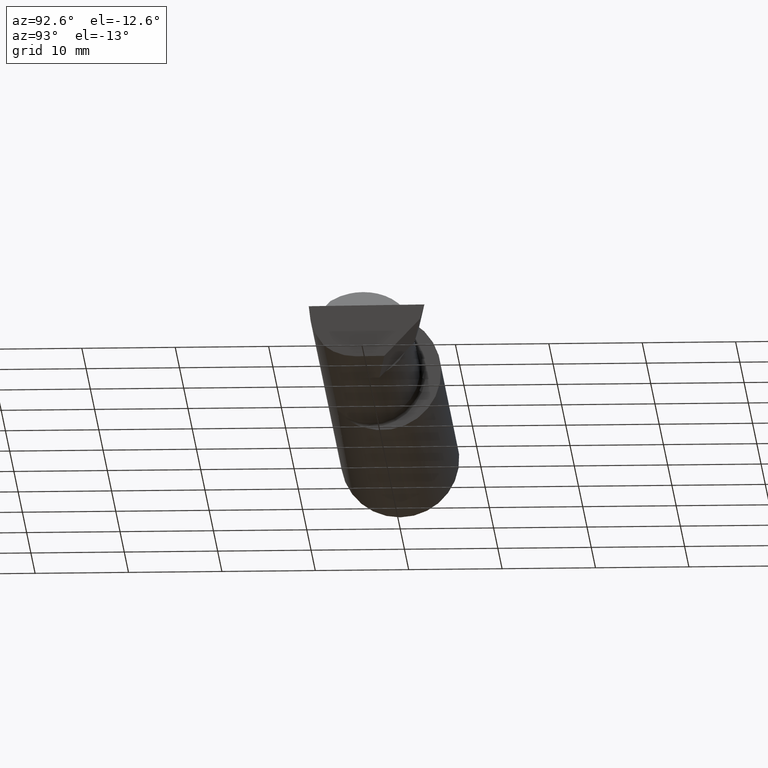
[diagram: clean part render]
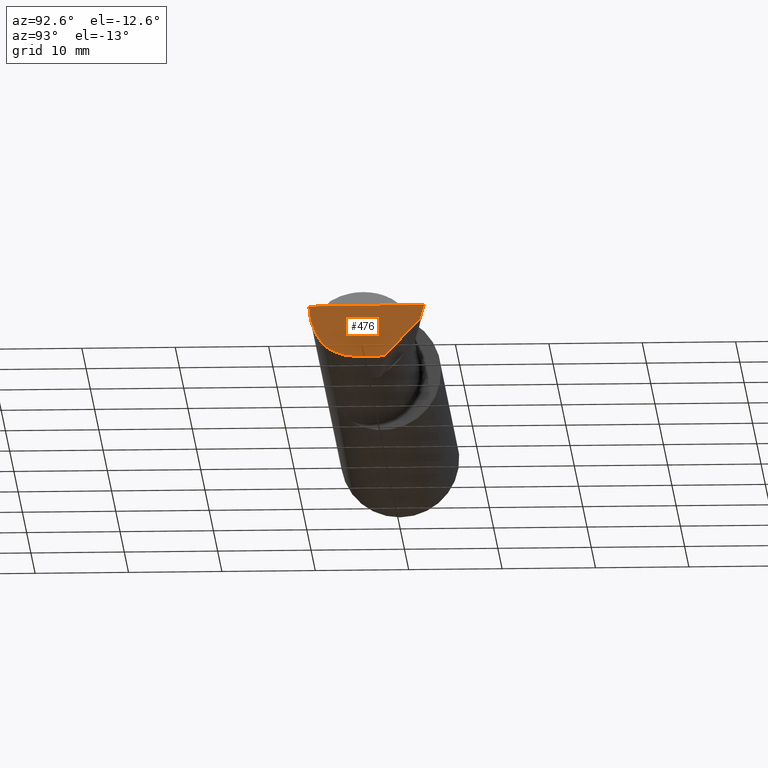
[diagram: same view with one face highlighted and labeled with its STEP entity id]
A machine part, auxiliary view. The second image highlights one B-rep face of the part: STEP entity #476.
In plain terms, the highlighted planar face has unit normal (-0.9922, 0.026, 0.1219).
Its self-contained STEP definition (entity closure, byte-faithful):
#3 = VECTOR ( 'NONE', #484, 39.37007874015748143 ) ;
#9 = ORIENTED_EDGE ( 'NONE', *, *, #692, .F. ) ;
#23 = CARTESIAN_POINT ( 'NONE',  ( 2.966195468375010247, -0.05299999999999998462, -0.2131499999999999229 ) ) ;
#41 = LINE ( 'NONE', #325, #685 ) ;
#42 = DIRECTION ( 'NONE',  ( -0.9922060308645452853, 0.02598182930469785171, 0.1218693434051673213 ) ) ;
#47 = CARTESIAN_POINT ( 'NONE',  ( 2.992127980275568255, 0.2189633278254531357, -0.05999999999999997696 ) ) ;
#63 = LINE ( 'NONE', #110, #693 ) ;
#64 = EDGE_CURVE ( 'NONE', #446, #642, #307, .T. ) ;
#77 = CARTESIAN_POINT ( 'NONE',  ( 2.968492717492763777, -0.1868028301886796583, -0.1659208399614084672 ) ) ;
#80 = ORIENTED_EDGE ( 'NONE', *, *, #64, .F. ) ;
#109 = CARTESIAN_POINT ( 'NONE',  ( 2.987221270274242446, -0.2498499999999999888, -6.495017623931165518E-17 ) ) ;
#110 = CARTESIAN_POINT ( 'NONE',  ( 2.987226101480009444, -0.2496655036952227513, -6.495142247650543265E-17 ) ) ;
#120 =( BOUNDED_CURVE ( )  B_SPLINE_CURVE ( 3, ( #509, #202, #453, #23 ),
 .UNSPECIFIED., .F., .F. ) 
 B_SPLINE_CURVE_WITH_KNOTS ( ( 4, 4 ),
 ( 5.814587959757513858, 6.493234751459754150 ),
 .UNSPECIFIED. ) 
 CURVE ( )  GEOMETRIC_REPRESENTATION_ITEM ( )  RATIONAL_B_SPLINE_CURVE ( ( 1.000000000000000000, 0.9619867256453021875, 0.9619867256453021875, 1.000000000000000000 ) ) 
 REPRESENTATION_ITEM ( '' )  );
#153 = EDGE_CURVE ( 'NONE', #570, #717, #500, .T. ) ;
#164 = ORIENTED_EDGE ( 'NONE', *, *, #654, .T. ) ;
#188 = FACE_OUTER_BOUND ( 'NONE', #313, .T. ) ;
#202 = CARTESIAN_POINT ( 'NONE',  ( 2.965703997523711166, -0.1485302233682061768, -0.1967848538638755362 ) ) ;
#216 = ORIENTED_EDGE ( 'NONE', *, *, #153, .F. ) ;
#225 = ORIENTED_EDGE ( 'NONE', *, *, #401, .F. ) ;
#244 = CARTESIAN_POINT ( 'NONE',  ( 2.966218632342874972, -0.05211540375603048586, -0.2131499999999999229 ) ) ;
#307 = LINE ( 'NONE', #244, #593 ) ;
#313 = EDGE_LOOP ( 'NONE', ( #164, #80, #225, #216, #668, #9 ) ) ;
#325 = CARTESIAN_POINT ( 'NONE',  ( 2.983714411583737736, 0.1632262006094381546, -0.1166167083458163056 ) ) ;
#327 = DIRECTION ( 'NONE',  ( -0.02617694830787776691, -0.9996573249755572599, 1.707029659308867585E-16 ) ) ;
#384 = DIRECTION ( 'NONE',  ( -0.1053106618241987924, -0.6976485211320166968, -0.7086580314005191950 ) ) ;
#401 = EDGE_CURVE ( 'NONE', #717, #446, #41, .T. ) ;
#420 = DIRECTION ( 'NONE',  ( 0.02617694830787778426, 0.9996573249755572599, -6.752493720238252178E-18 ) ) ;
#442 =( BOUNDED_CURVE ( )  B_SPLINE_CURVE ( 3, ( #629, #740, #479, #109 ),
 .UNSPECIFIED., .F., .T. ) 
 B_SPLINE_CURVE_WITH_KNOTS ( ( 4, 4 ),
 ( 0.6344818218798480292, 1.360746882514728195 ),
 .UNSPECIFIED. ) 
 CURVE ( )  GEOMETRIC_REPRESENTATION_ITEM ( )  RATIONAL_B_SPLINE_CURVE ( ( 1.000000000000000000, 0.9565258159410998662, 0.9565258159410998662, 1.000000000000000000 ) ) 
 REPRESENTATION_ITEM ( '' )  );
#446 = VERTEX_POINT ( 'NONE', #594 ) ;
#453 = CARTESIAN_POINT ( 'NONE',  ( 2.964907988924523785, -0.1021668565906571485, -0.2131499999999999506 ) ) ;
#475 = DIRECTION ( 'NONE',  ( 0.1219104985253027518, 0.0000000000000000000, 0.9925410975618652598 ) ) ;
#476 = ADVANCED_FACE ( 'NONE', ( #188 ), #530, .F. ) ;
#479 = CARTESIAN_POINT ( 'NONE',  ( 2.979623920331826881, -0.2498500000000000443, -0.06185424669427484756 ) ) ;
#484 = DIRECTION ( 'NONE',  ( -0.1240019227989549999, -0.3022330132596655061, -0.9451342385281282787 ) ) ;
#500 = LINE ( 'NONE', #514, #3 ) ;
#509 = CARTESIAN_POINT ( 'NONE',  ( 2.968492717492763777, -0.1868028301886796583, -0.1659208399614084672 ) ) ;
#514 = CARTESIAN_POINT ( 'NONE',  ( 2.991023571893946631, 0.2162715254282616684, -0.06841772571930093694 ) ) ;
#530 = PLANE ( 'NONE',  #639 ) ;
#570 = VERTEX_POINT ( 'NONE', #585 ) ;
#585 = CARTESIAN_POINT ( 'NONE',  ( 3.000000000000025313, 0.2381500000000423278, 1.300445015233991237E-13 ) ) ;
#592 = CARTESIAN_POINT ( 'NONE',  ( 2.963949576795525065, -0.1303119248116721418, -0.2149526021148595867 ) ) ;
#593 = VECTOR ( 'NONE', #327, 39.37007874015748143 ) ;
#594 = CARTESIAN_POINT ( 'NONE',  ( 2.969369008890594408, 0.06819262280682643340, -0.2131499999999999784 ) ) ;
#629 = CARTESIAN_POINT ( 'NONE',  ( 2.968492717492763777, -0.1868028301886796583, -0.1659208399614084672 ) ) ;
#639 = AXIS2_PLACEMENT_3D ( 'NONE', #592, #42, #475 ) ;
#642 = VERTEX_POINT ( 'NONE', #691 ) ;
#654 = EDGE_CURVE ( 'NONE', #676, #642, #120, .T. ) ;
#661 = VERTEX_POINT ( 'NONE', #684 ) ;
#668 = ORIENTED_EDGE ( 'NONE', *, *, #748, .F. ) ;
#676 = VERTEX_POINT ( 'NONE', #77 ) ;
#684 = CARTESIAN_POINT ( 'NONE',  ( 2.987221270274242446, -0.2498499999999999888, -6.495017623931165518E-17 ) ) ;
#685 = VECTOR ( 'NONE', #384, 39.37007874015748854 ) ;
#691 = CARTESIAN_POINT ( 'NONE',  ( 2.966195468375010247, -0.05299999999999998462, -0.2131499999999999229 ) ) ;
#692 = EDGE_CURVE ( 'NONE', #676, #661, #442, .T. ) ;
#693 = VECTOR ( 'NONE', #420, 39.37007874015748143 ) ;
#717 = VERTEX_POINT ( 'NONE', #47 ) ;
#740 = CARTESIAN_POINT ( 'NONE',  ( 2.973097331270540877, -0.2278791102234775934, -0.1196748990301323978 ) ) ;
#748 = EDGE_CURVE ( 'NONE', #661, #570, #63, .T. ) ;